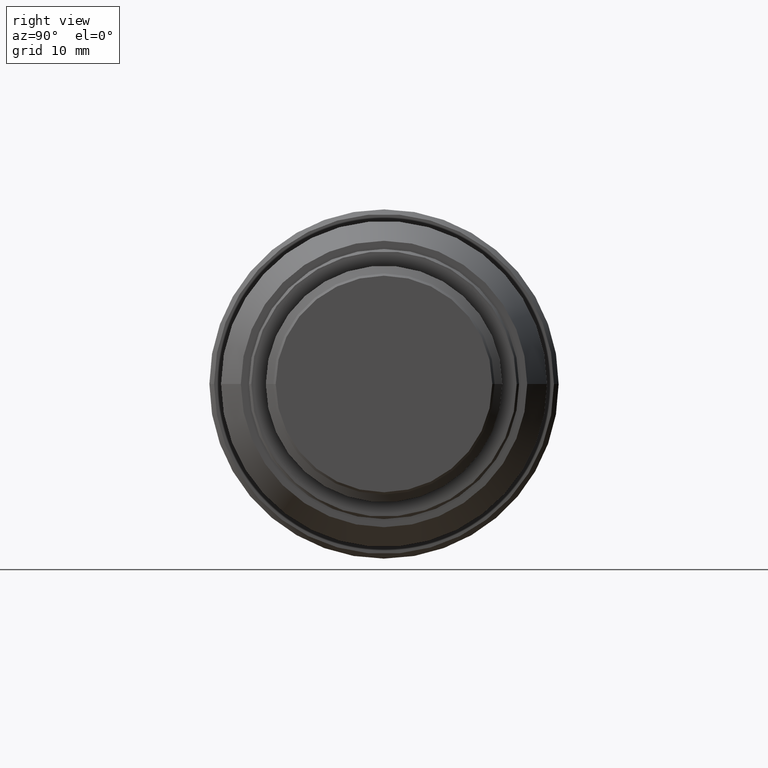
[diagram: clean part render]
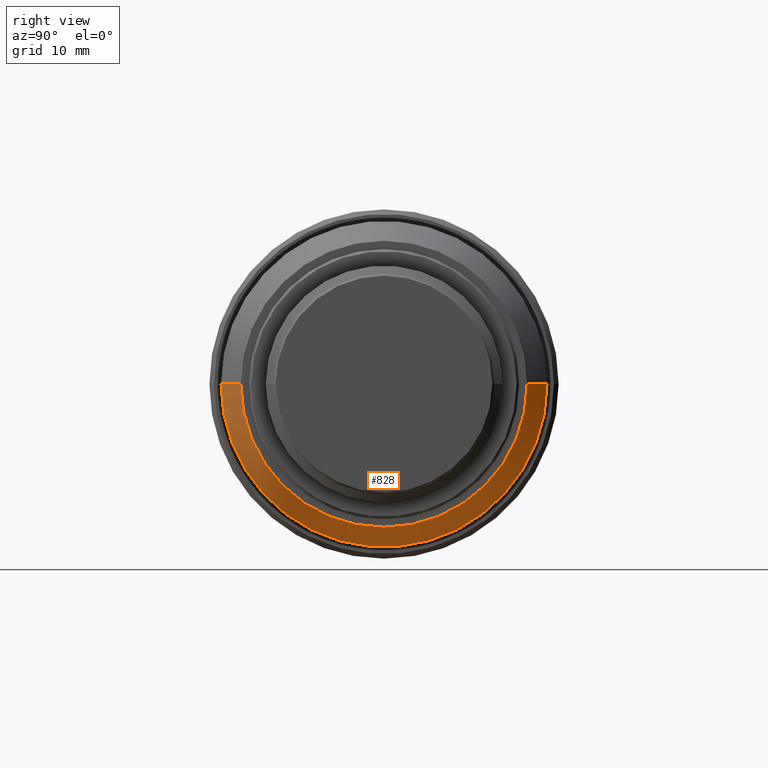
[diagram: same view with one face highlighted and labeled with its STEP entity id]
A machine part, right view. The second image highlights one B-rep face of the part: STEP entity #828.
In plain terms, the highlighted conical surface has half-angle 25 deg.
Its self-contained STEP definition (entity closure, byte-faithful):
#21 = LINE ( 'NONE', #711, #693 ) ;
#32 = CARTESIAN_POINT ( 'NONE',  ( 40.54395223513370183, 14.00000000000000000, 1.714505518806289905E-15 ) ) ;
#37 = DIRECTION ( 'NONE',  ( 0.000000000000000000, -1.000000000000000000, 0.000000000000000000 ) ) ;
#40 = CIRCLE ( 'NONE', #462, 12.30000000000000071 ) ;
#55 = VERTEX_POINT ( 'NONE', #1441 ) ;
#212 = VERTEX_POINT ( 'NONE', #1036 ) ;
#244 = EDGE_CURVE ( 'NONE', #604, #55, #21, .T. ) ;
#276 = AXIS2_PLACEMENT_3D ( 'NONE', #790, #836, #37 ) ;
#365 = VERTEX_POINT ( 'NONE', #32 ) ;
#370 = DIRECTION ( 'NONE',  ( -0.9063077870366497146, 0.4226182617406998299, 5.175581015019657545E-17 ) ) ;
#382 = ORIENTED_EDGE ( 'NONE', *, *, #1020, .T. ) ;
#454 = CARTESIAN_POINT ( 'NONE',  ( 44.18961399999999884, -2.732086857218409751E-15, 0.000000000000000000 ) ) ;
#462 = AXIS2_PLACEMENT_3D ( 'NONE', #454, #780, #471 ) ;
#464 = FACE_OUTER_BOUND ( 'NONE', #1131, .T. ) ;
#469 = DIRECTION ( 'NONE',  ( -0.9063077870366497146, -0.4226182617406998299, 0.000000000000000000 ) ) ;
#471 = DIRECTION ( 'NONE',  ( 0.000000000000000000, -1.000000000000000000, 0.000000000000000000 ) ) ;
#550 = CARTESIAN_POINT ( 'NONE',  ( 40.54395223513370183, -2.276030786080369745E-15, 0.000000000000000000 ) ) ;
#604 = VERTEX_POINT ( 'NONE', #710 ) ;
#693 = VECTOR ( 'NONE', #469, 1000.000000000000114 ) ;
#710 = CARTESIAN_POINT ( 'NONE',  ( 44.18961399999999884, -12.30000000000000071, 0.000000000000000000 ) ) ;
#711 = CARTESIAN_POINT ( 'NONE',  ( 40.54395223513370183, -14.00000000000000000, 0.000000000000000000 ) ) ;
#755 = AXIS2_PLACEMENT_3D ( 'NONE', #550, #1459, #901 ) ;
#780 = DIRECTION ( 'NONE',  ( 1.000000000000000000, -1.250955520704399823E-16, 0.000000000000000000 ) ) ;
#790 = CARTESIAN_POINT ( 'NONE',  ( 40.54395223513370183, -2.276030786080369745E-15, 0.000000000000000000 ) ) ;
#798 = ORIENTED_EDGE ( 'NONE', *, *, #857, .F. ) ;
#828 = ADVANCED_FACE ( 'NONE', ( #464 ), #870, .T. ) ;
#836 = DIRECTION ( 'NONE',  ( 1.000000000000000000, -1.250955520704399823E-16, 0.000000000000000000 ) ) ;
#857 = EDGE_CURVE ( 'NONE', #212, #604, #40, .T. ) ;
#870 = CONICAL_SURFACE ( 'NONE', #755, 14.00000000000000000, 0.4363323129985828830 ) ;
#901 = DIRECTION ( 'NONE',  ( 0.000000000000000000, -1.000000000000000000, 0.000000000000000000 ) ) ;
#932 = CARTESIAN_POINT ( 'NONE',  ( 40.54395223513370183, 14.00000000000000000, 1.714505518806289905E-15 ) ) ;
#1020 = EDGE_CURVE ( 'NONE', #212, #365, #1399, .T. ) ;
#1036 = CARTESIAN_POINT ( 'NONE',  ( 44.18961399999999884, 12.30000000000000071, 1.506315562951239877E-15 ) ) ;
#1058 = CIRCLE ( 'NONE', #276, 14.00000000000000000 ) ;
#1131 = EDGE_LOOP ( 'NONE', ( #1285, #1298, #798, #382 ) ) ;
#1270 = VECTOR ( 'NONE', #370, 1000.000000000000114 ) ;
#1285 = ORIENTED_EDGE ( 'NONE', *, *, #1429, .T. ) ;
#1298 = ORIENTED_EDGE ( 'NONE', *, *, #244, .F. ) ;
#1399 = LINE ( 'NONE', #932, #1270 ) ;
#1429 = EDGE_CURVE ( 'NONE', #365, #55, #1058, .T. ) ;
#1441 = CARTESIAN_POINT ( 'NONE',  ( 40.54395223513370183, -14.00000000000000000, 0.000000000000000000 ) ) ;
#1459 = DIRECTION ( 'NONE',  ( -1.000000000000000000, 1.250955520704399823E-16, 0.000000000000000000 ) ) ;